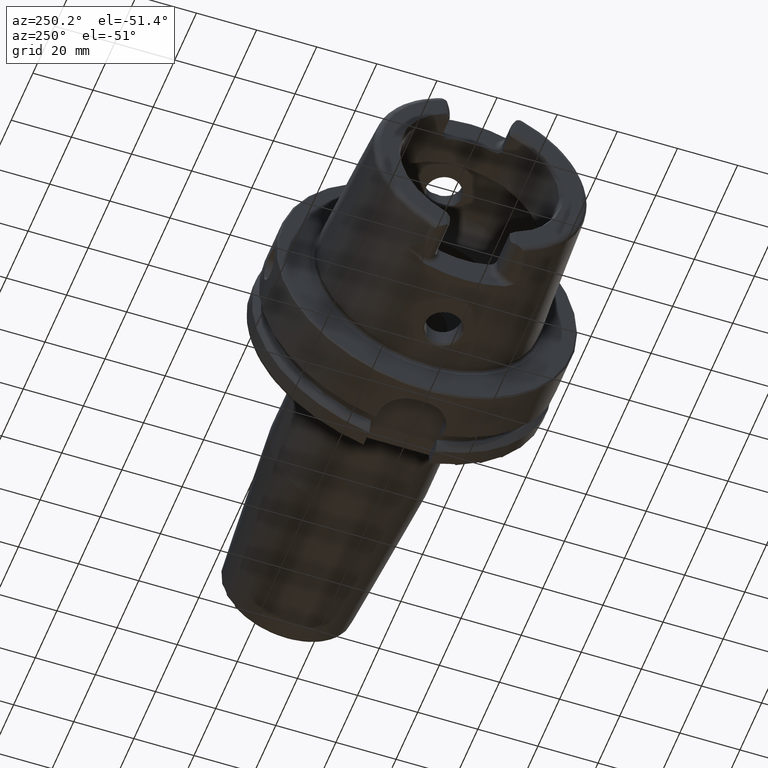
[diagram: clean part render]
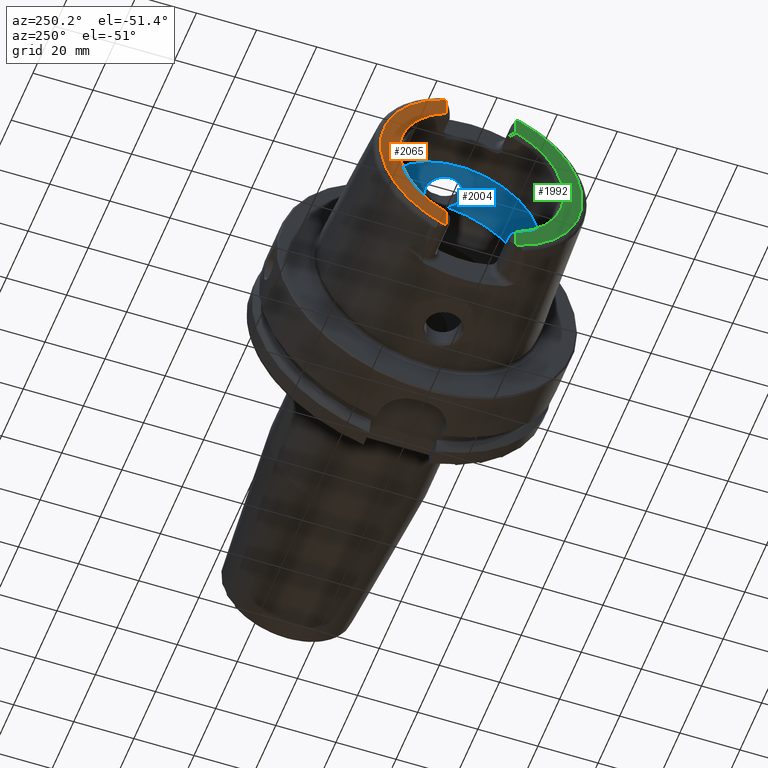
[diagram: same view with three faces highlighted in distinct colors, each labeled with its STEP entity id]
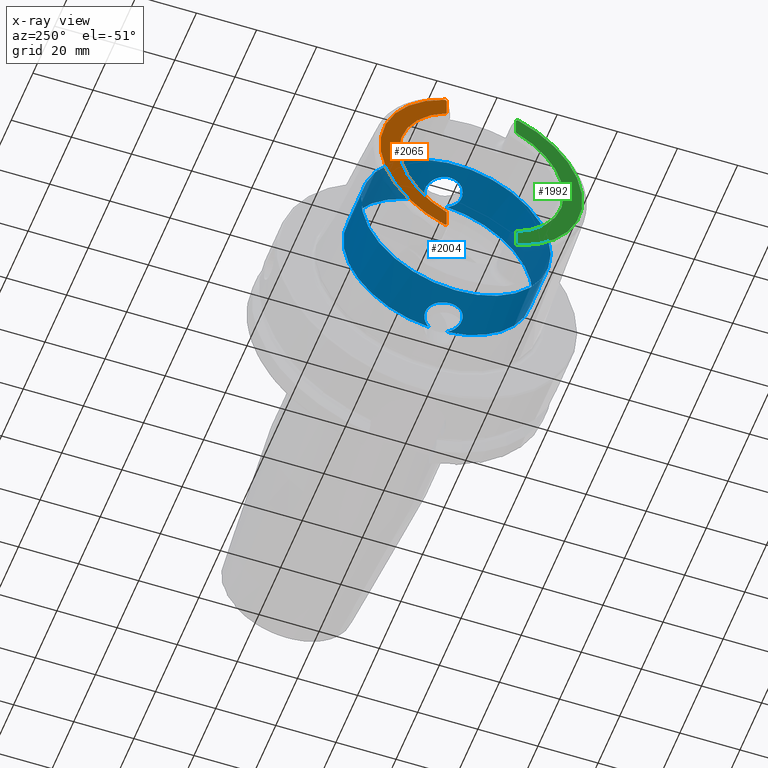
[diagram: x-ray of the same camera — body ghosted, the three highlighted faces saturated]
A machine part, auxiliary view with three faces highlighted in distinct colors.
The next image is the same camera in x-ray (body ghosted, the three faces saturated) — at least one of them is partly hidden behind the body in this view.
Their STEP definitions:

[orange] entity #2065 — the highlighted planar face has unit normal (-1, 0, 0).
#129=PLANE('',#2317);
#303=FACE_OUTER_BOUND('',#431,.T.);
#431=EDGE_LOOP('',(#1849,#1850,#1851,#1852,#1853,#1854));
#479=LINE('',#3095,#586);
#491=LINE('',#3206,#598);
#586=VECTOR('',#2481,10.);
#598=VECTOR('',#2541,10.);
#696=CIRCLE('',#2159,4.88);
#707=CIRCLE('',#2184,4.88);
#771=CIRCLE('',#2309,27.3660254037844);
#772=CIRCLE('',#2313,33.6001839277785);
#836=VERTEX_POINT('',#3088);
#839=VERTEX_POINT('',#3093);
#842=VERTEX_POINT('',#3103);
#863=VERTEX_POINT('',#3203);
#864=VERTEX_POINT('',#3205);
#869=VERTEX_POINT('',#3224);
#1055=EDGE_CURVE('',#839,#836,#479,.T.);
#1059=EDGE_CURVE('',#842,#836,#696,.T.);
#1086=EDGE_CURVE('',#863,#864,#491,.T.);
#1093=EDGE_CURVE('',#863,#869,#707,.T.);
#1281=EDGE_CURVE('',#864,#839,#771,.T.);
#1283=EDGE_CURVE('',#842,#869,#772,.T.);
#1849=ORIENTED_EDGE('',*,*,#1055,.F.);
#1850=ORIENTED_EDGE('',*,*,#1281,.F.);
#1851=ORIENTED_EDGE('',*,*,#1086,.F.);
#1852=ORIENTED_EDGE('',*,*,#1093,.T.);
#1853=ORIENTED_EDGE('',*,*,#1283,.F.);
#1854=ORIENTED_EDGE('',*,*,#1059,.T.);
#2065=ADVANCED_FACE('',(#303),#129,.T.);
#2159=AXIS2_PLACEMENT_3D('',#3104,#2489,#2490);
#2184=AXIS2_PLACEMENT_3D('',#3237,#2550,#2551);
#2309=AXIS2_PLACEMENT_3D('',#4420,#2862,#2863);
#2313=AXIS2_PLACEMENT_3D('',#4425,#2871,#2872);
#2317=AXIS2_PLACEMENT_3D('',#4432,#2880,#2881);
#2481=DIRECTION('',(0.,0.,-1.));
#2489=DIRECTION('center_axis',(-1.,0.,0.));
#2490=DIRECTION('ref_axis',(0.,-0.477884921181368,0.878422450821629));
#2541=DIRECTION('',(0.,0.,-1.));
#2550=DIRECTION('center_axis',(-1.,0.,0.));
#2551=DIRECTION('ref_axis',(0.,1.,0.));
#2862=DIRECTION('center_axis',(-1.,0.,0.));
#2863=DIRECTION('ref_axis',(0.,-1.,0.));
#2871=DIRECTION('center_axis',(1.,0.,0.));
#2872=DIRECTION('ref_axis',(0.,0.,-1.));
#2880=DIRECTION('center_axis',(-1.,0.,0.));
#2881=DIRECTION('ref_axis',(0.,0.,1.));
#3088=CARTESIAN_POINT('',(-50.,11.51,-30.8899431813596));
#3093=CARTESIAN_POINT('',(-50.,11.51,-24.8277918148307));
#3095=CARTESIAN_POINT('',(-50.,11.51,-10.));
#3103=CARTESIAN_POINT('',(-50.,12.0743049948301,-31.355757348091));
#3104=CARTESIAN_POINT('Origin',(-50.,14.89,-27.37));
#3203=CARTESIAN_POINT('',(-50.,11.51,30.8899431813596));
#3205=CARTESIAN_POINT('',(-50.,11.51,24.8277918148307));
#3206=CARTESIAN_POINT('',(-50.,11.51,13.685));
#3224=CARTESIAN_POINT('',(-50.,12.0743049948301,31.355757348091));
#3237=CARTESIAN_POINT('Origin',(-50.,14.89,27.37));
#4420=CARTESIAN_POINT('Origin',(-50.,0.,0.));
#4425=CARTESIAN_POINT('Origin',(-50.,0.,0.));
#4432=CARTESIAN_POINT('Origin',(-50.,33.6001839277785,0.));

[blue] entity #2004 — the highlighted cylindrical surface (bore or boss wall) has radius 31.5 mm, axis along (-1, 0, 0).
#49=B_SPLINE_CURVE_WITH_KNOTS('',3,(#3570,#3571,#3572,#3573,#3574,#3575,
#3576,#3577,#3578,#3579,#3580,#3581,#3582,#3583,#3584,#3585,#3586,#3587,
#3588,#3589,#3590,#3591,#3592,#3593,#3594,#3595,#3596,#3597,#3598,#3599,
#3600),.UNSPECIFIED.,.F.,.F.,(4,2,2,2,2,2,2,2,2,2,2,3,2,2,4),(-2.42966289251045,
-2.26609494287567,-2.03948128472637,-1.81286762657707,-1.58625396842777,
-1.35964031027847,-1.1330370617835,-0.906433813288535,-0.679830564793567,
-0.453227316298599,-0.226613658149299,0.,0.2266136581493,0.453227316298599,
0.616795265988555),.UNSPECIFIED.);
#54=B_SPLINE_CURVE_WITH_KNOTS('',3,(#3762,#3763,#3764,#3765,#3766,#3767,
#3768,#3769,#3770,#3771,#3772,#3773,#3774,#3775,#3776,#3777,#3778,#3779,
#3780,#3781,#3782,#3783,#3784,#3785,#3786,#3787,#3788,#3789,#3790,#3791,
#3792),.UNSPECIFIED.,.F.,.F.,(4,2,2,3,2,2,2,2,2,2,2,2,2,2,4),(-0.616795265933374,
-0.453227316298598,-0.226613658149299,0.,0.2266136581493,0.453227316298599,
0.679830564793567,0.906433813288535,1.1330370617835,1.35964031027847,1.58625396842777,
1.81286762657707,2.03948128472637,2.26609494287567,2.42966289256562),
 .UNSPECIFIED.);
#183=CYLINDRICAL_SURFACE('',#2195,31.5);
#242=FACE_OUTER_BOUND('',#369,.T.);
#369=EDGE_LOOP('',(#1504,#1505,#1506,#1507,#1508,#1509,#1510,#1511,#1512));
#501=LINE('',#3808,#608);
#608=VECTOR('',#2583,31.5);
#714=CIRCLE('',#2196,31.5);
#715=CIRCLE('',#2197,31.5);
#716=CIRCLE('',#2198,31.5);
#717=CIRCLE('',#2199,31.5);
#718=CIRCLE('',#2200,31.5);
#888=VERTEX_POINT('',#3558);
#889=VERTEX_POINT('',#3569);
#892=VERTEX_POINT('',#3749);
#894=VERTEX_POINT('',#3761);
#895=VERTEX_POINT('',#3805);
#896=VERTEX_POINT('',#3807);
#897=VERTEX_POINT('',#3809);
#1119=EDGE_CURVE('',#889,#888,#49,.T.);
#1125=EDGE_CURVE('',#894,#892,#54,.T.);
#1128=EDGE_CURVE('',#895,#892,#714,.T.);
#1129=EDGE_CURVE('',#895,#896,#501,.T.);
#1130=EDGE_CURVE('',#896,#897,#715,.T.);
#1131=EDGE_CURVE('',#897,#896,#716,.T.);
#1132=EDGE_CURVE('',#889,#895,#717,.T.);
#1133=EDGE_CURVE('',#894,#888,#718,.T.);
#1504=ORIENTED_EDGE('',*,*,#1125,.T.);
#1505=ORIENTED_EDGE('',*,*,#1128,.F.);
#1506=ORIENTED_EDGE('',*,*,#1129,.T.);
#1507=ORIENTED_EDGE('',*,*,#1130,.T.);
#1508=ORIENTED_EDGE('',*,*,#1131,.T.);
#1509=ORIENTED_EDGE('',*,*,#1129,.F.);
#1510=ORIENTED_EDGE('',*,*,#1132,.F.);
#1511=ORIENTED_EDGE('',*,*,#1119,.T.);
#1512=ORIENTED_EDGE('',*,*,#1133,.F.);
#2004=ADVANCED_FACE('',(#242),#183,.F.);
#2195=AXIS2_PLACEMENT_3D('',#3804,#2579,#2580);
#2196=AXIS2_PLACEMENT_3D('',#3806,#2581,#2582);
#2197=AXIS2_PLACEMENT_3D('',#3810,#2584,#2585);
#2198=AXIS2_PLACEMENT_3D('',#3811,#2586,#2587);
#2199=AXIS2_PLACEMENT_3D('',#3812,#2588,#2589);
#2200=AXIS2_PLACEMENT_3D('',#3813,#2590,#2591);
#2579=DIRECTION('center_axis',(-1.,0.,0.));
#2580=DIRECTION('ref_axis',(0.,1.,0.));
#2581=DIRECTION('center_axis',(-1.,0.,0.));
#2582=DIRECTION('ref_axis',(0.,0.,1.));
#2583=DIRECTION('',(-1.,0.,0.));
#2584=DIRECTION('center_axis',(-1.,0.,0.));
#2585=DIRECTION('ref_axis',(0.,0.,1.));
#2586=DIRECTION('center_axis',(-1.,0.,0.));
#2587=DIRECTION('ref_axis',(0.,0.,1.));
#2588=DIRECTION('center_axis',(-1.,0.,0.));
#2589=DIRECTION('ref_axis',(0.,0.,1.));
#2590=DIRECTION('center_axis',(-1.,0.,0.));
#2591=DIRECTION('ref_axis',(0.,0.,1.));
#3558=CARTESIAN_POINT('',(-9.74679434480896,2.89893607109041,-31.3663222207471));
#3569=CARTESIAN_POINT('',(-9.74679434480896,-2.89893607109041,-31.3663222207471));
#3570=CARTESIAN_POINT('Ctrl Pts',(-9.74679434480898,-2.8989360710904,-31.3663222207471));
#3571=CARTESIAN_POINT('Ctrl Pts',(-10.0245557799842,-3.40227174537722,-31.3198029657389));
#3572=CARTESIAN_POINT('Ctrl Pts',(-10.3735944692601,-3.85887584349869,-31.2651415110221));
#3573=CARTESIAN_POINT('Ctrl Pts',(-11.289042660848,-4.77432403508655,-31.140708727458));
#3574=CARTESIAN_POINT('Ctrl Pts',(-11.9624834305428,-5.23577180141274,-31.0633803744766));
#3575=CARTESIAN_POINT('Ctrl Pts',(-13.4401908644727,-5.84865855662958,-30.9538382316308));
#3576=CARTESIAN_POINT('Ctrl Pts',(-14.2446211395023,-6.00000000000001,-30.9232921921325));
#3577=CARTESIAN_POINT('Ctrl Pts',(-15.7553788604977,-6.00000000000001,-30.9232921921325));
#3578=CARTESIAN_POINT('Ctrl Pts',(-16.5598091355273,-5.84865855662958,-30.9538382316308));
#3579=CARTESIAN_POINT('Ctrl Pts',(-18.0375165694572,-5.23577180141275,-31.0633803744766));
#3580=CARTESIAN_POINT('Ctrl Pts',(-18.710957339152,-4.77432403508655,-31.140708727458));
#3581=CARTESIAN_POINT('Ctrl Pts',(-19.7742996118461,-3.71098176239249,-31.2852440928545));
#3582=CARTESIAN_POINT('Ctrl Pts',(-20.2357665181958,-3.03753058698362,-31.3619556484746));
#3583=CARTESIAN_POINT('Ctrl Pts',(-20.8486671603361,-1.55978711209124,-31.4700797313679));
#3584=CARTESIAN_POINT('Ctrl Pts',(-21.,-0.755344161649895,-31.5));
#3585=CARTESIAN_POINT('Ctrl Pts',(-21.,0.755344161649892,-31.5));
#3586=CARTESIAN_POINT('Ctrl Pts',(-20.8486671603361,1.55978711209124,-31.4700797313679));
#3587=CARTESIAN_POINT('Ctrl Pts',(-20.2357665181958,3.03753058698362,-31.3619556484746));
#3588=CARTESIAN_POINT('Ctrl Pts',(-19.7742996118461,3.71098176239249,-31.2852440928545));
#3589=CARTESIAN_POINT('Ctrl Pts',(-18.710957339152,4.77432403508655,-31.140708727458));
#3590=CARTESIAN_POINT('Ctrl Pts',(-18.0375165694572,5.23577180141274,-31.0633803744766));
#3591=CARTESIAN_POINT('Ctrl Pts',(-16.5598091355273,5.84865855662958,-30.9538382316308));
#3592=CARTESIAN_POINT('Ctrl Pts',(-15.7553788604977,6.00000000000001,-30.9232921921325));
#3593=CARTESIAN_POINT('Ctrl Pts',(-15.,6.00000000000001,-30.9232921921325));
#3594=CARTESIAN_POINT('Ctrl Pts',(-14.2446211395023,6.00000000000001,-30.9232921921325));
#3595=CARTESIAN_POINT('Ctrl Pts',(-13.4401908644727,5.84865855662958,-30.9538382316308));
#3596=CARTESIAN_POINT('Ctrl Pts',(-11.9624834305428,5.23577180141274,-31.0633803744766));
#3597=CARTESIAN_POINT('Ctrl Pts',(-11.289042660848,4.77432403508655,-31.140708727458));
#3598=CARTESIAN_POINT('Ctrl Pts',(-10.3735944691306,3.85887584336922,-31.2651415110397));
#3599=CARTESIAN_POINT('Ctrl Pts',(-10.0245557801354,3.40227174565105,-31.3198029657135));
#3600=CARTESIAN_POINT('Ctrl Pts',(-9.74679434480898,2.8989360710904,-31.3663222207471));
#3749=CARTESIAN_POINT('',(-9.74679434480896,-2.89893607109042,31.3663222207471));
#3761=CARTESIAN_POINT('',(-9.74679434480896,2.89893607109042,31.3663222207471));
#3762=CARTESIAN_POINT('Ctrl Pts',(-9.74679434480897,2.89893607109041,31.3663222207471));
#3763=CARTESIAN_POINT('Ctrl Pts',(-10.0245557799842,3.40227174537723,31.3198029657389));
#3764=CARTESIAN_POINT('Ctrl Pts',(-10.3735944692601,3.85887584349869,31.2651415110221));
#3765=CARTESIAN_POINT('Ctrl Pts',(-11.289042660848,4.77432403508655,31.140708727458));
#3766=CARTESIAN_POINT('Ctrl Pts',(-11.9624834305428,5.23577180141274,31.0633803744766));
#3767=CARTESIAN_POINT('Ctrl Pts',(-13.4401908644727,5.84865855662958,30.9538382316308));
#3768=CARTESIAN_POINT('Ctrl Pts',(-14.2446211395023,6.00000000000001,30.9232921921325));
#3769=CARTESIAN_POINT('Ctrl Pts',(-15.,6.00000000000001,30.9232921921325));
#3770=CARTESIAN_POINT('Ctrl Pts',(-15.7553788604977,6.00000000000001,30.9232921921325));
#3771=CARTESIAN_POINT('Ctrl Pts',(-16.5598091355273,5.84865855662958,30.9538382316308));
#3772=CARTESIAN_POINT('Ctrl Pts',(-18.0375165694572,5.23577180141274,31.0633803744766));
#3773=CARTESIAN_POINT('Ctrl Pts',(-18.710957339152,4.77432403508655,31.140708727458));
#3774=CARTESIAN_POINT('Ctrl Pts',(-19.7742996118461,3.71098176239249,31.2852440928545));
#3775=CARTESIAN_POINT('Ctrl Pts',(-20.2357665181958,3.03753058698362,31.3619556484746));
#3776=CARTESIAN_POINT('Ctrl Pts',(-20.8486671603361,1.55978711209124,31.4700797313679));
#3777=CARTESIAN_POINT('Ctrl Pts',(-21.,0.755344161649892,31.5));
#3778=CARTESIAN_POINT('Ctrl Pts',(-21.,-0.755344161649894,31.5));
#3779=CARTESIAN_POINT('Ctrl Pts',(-20.8486671603361,-1.55978711209124,31.4700797313679));
#3780=CARTESIAN_POINT('Ctrl Pts',(-20.2357665181958,-3.03753058698362,31.3619556484746));
#3781=CARTESIAN_POINT('Ctrl Pts',(-19.7742996118461,-3.71098176239249,31.2852440928545));
#3782=CARTESIAN_POINT('Ctrl Pts',(-18.710957339152,-4.77432403508655,31.140708727458));
#3783=CARTESIAN_POINT('Ctrl Pts',(-18.0375165694572,-5.23577180141274,31.0633803744766));
#3784=CARTESIAN_POINT('Ctrl Pts',(-16.5598091355273,-5.84865855662958,30.9538382316308));
#3785=CARTESIAN_POINT('Ctrl Pts',(-15.7553788604977,-6.00000000000001,30.9232921921325));
#3786=CARTESIAN_POINT('Ctrl Pts',(-14.2446211395023,-6.00000000000001,30.9232921921325));
#3787=CARTESIAN_POINT('Ctrl Pts',(-13.4401908644727,-5.84865855662958,30.9538382316308));
#3788=CARTESIAN_POINT('Ctrl Pts',(-11.9624834305428,-5.23577180141274,31.0633803744766));
#3789=CARTESIAN_POINT('Ctrl Pts',(-11.289042660848,-4.77432403508655,31.140708727458));
#3790=CARTESIAN_POINT('Ctrl Pts',(-10.3735944691306,-3.85887584336922,31.2651415110397));
#3791=CARTESIAN_POINT('Ctrl Pts',(-10.0245557801353,-3.40227174565106,31.3198029657135));
#3792=CARTESIAN_POINT('Ctrl Pts',(-9.74679434480897,-2.89893607109041,31.3663222207471));
#3804=CARTESIAN_POINT('Origin',(-18.1430342013226,0.,0.));
#3805=CARTESIAN_POINT('',(-9.74679434480896,-31.5,3.85763741731416E-15));
#3806=CARTESIAN_POINT('Origin',(-9.74679434480896,0.,0.));
#3807=CARTESIAN_POINT('',(-26.5392740578363,-31.5,3.85763741731416E-15));
#3808=CARTESIAN_POINT('',(-18.1430342013226,-31.5,3.85763741731416E-15));
#3809=CARTESIAN_POINT('',(-26.5392740578363,-3.85763741731416E-15,-31.5));
#3810=CARTESIAN_POINT('Origin',(-26.5392740578363,0.,0.));
#3811=CARTESIAN_POINT('Origin',(-26.5392740578363,0.,0.));
#3812=CARTESIAN_POINT('Origin',(-9.74679434480896,0.,0.));
#3813=CARTESIAN_POINT('Origin',(-9.74679434480896,0.,0.));

[green] entity #1992 — the highlighted planar face has unit normal (-1, 0, 0).
#105=PLANE('',#2170);
#230=FACE_OUTER_BOUND('',#355,.T.);
#355=EDGE_LOOP('',(#1424,#1425,#1426,#1427,#1428,#1429));
#484=LINE('',#3147,#591);
#486=LINE('',#3166,#593);
#591=VECTOR('',#2500,10.);
#593=VECTOR('',#2522,10.);
#699=CIRCLE('',#2166,27.3660254037844);
#702=CIRCLE('',#2171,4.88);
#703=CIRCLE('',#2172,33.6001839277785);
#704=CIRCLE('',#2173,4.88);
#848=VERTEX_POINT('',#3144);
#849=VERTEX_POINT('',#3146);
#851=VERTEX_POINT('',#3152);
#854=VERTEX_POINT('',#3160);
#855=VERTEX_POINT('',#3162);
#856=VERTEX_POINT('',#3164);
#1066=EDGE_CURVE('',#848,#849,#484,.T.);
#1069=EDGE_CURVE('',#849,#851,#699,.T.);
#1073=EDGE_CURVE('',#848,#854,#702,.T.);
#1074=EDGE_CURVE('',#855,#854,#703,.T.);
#1075=EDGE_CURVE('',#855,#856,#704,.T.);
#1076=EDGE_CURVE('',#851,#856,#486,.T.);
#1424=ORIENTED_EDGE('',*,*,#1066,.F.);
#1425=ORIENTED_EDGE('',*,*,#1073,.T.);
#1426=ORIENTED_EDGE('',*,*,#1074,.F.);
#1427=ORIENTED_EDGE('',*,*,#1075,.T.);
#1428=ORIENTED_EDGE('',*,*,#1076,.F.);
#1429=ORIENTED_EDGE('',*,*,#1069,.F.);
#1992=ADVANCED_FACE('',(#230),#105,.T.);
#2166=AXIS2_PLACEMENT_3D('',#3153,#2506,#2507);
#2170=AXIS2_PLACEMENT_3D('',#3159,#2514,#2515);
#2171=AXIS2_PLACEMENT_3D('',#3161,#2516,#2517);
#2172=AXIS2_PLACEMENT_3D('',#3163,#2518,#2519);
#2173=AXIS2_PLACEMENT_3D('',#3165,#2520,#2521);
#2500=DIRECTION('',(0.,0.,1.));
#2506=DIRECTION('center_axis',(-1.,0.,0.));
#2507=DIRECTION('ref_axis',(0.,-1.,0.));
#2514=DIRECTION('center_axis',(-1.,0.,0.));
#2515=DIRECTION('ref_axis',(0.,0.,1.));
#2516=DIRECTION('center_axis',(-1.,0.,0.));
#2517=DIRECTION('ref_axis',(0.,-1.,0.));
#2518=DIRECTION('center_axis',(1.,0.,0.));
#2519=DIRECTION('ref_axis',(0.,0.,-1.));
#2520=DIRECTION('center_axis',(-1.,0.,0.));
#2521=DIRECTION('ref_axis',(0.,0.477884921181369,-0.878422450821629));
#2522=DIRECTION('',(0.,0.,1.));
#3144=CARTESIAN_POINT('',(-50.,-11.51,-30.8899431813596));
#3146=CARTESIAN_POINT('',(-50.,-11.51,-24.8277918148307));
#3147=CARTESIAN_POINT('',(-50.,-11.51,-13.685));
#3152=CARTESIAN_POINT('',(-50.,-11.51,24.8277918148307));
#3153=CARTESIAN_POINT('Origin',(-50.,0.,0.));
#3159=CARTESIAN_POINT('Origin',(-50.,33.6001839277785,0.));
#3160=CARTESIAN_POINT('',(-50.,-12.0743049948301,-31.355757348091));
#3161=CARTESIAN_POINT('Origin',(-50.,-14.89,-27.37));
#3162=CARTESIAN_POINT('',(-50.,-12.0743049948301,31.355757348091));
#3163=CARTESIAN_POINT('Origin',(-50.,0.,0.));
#3164=CARTESIAN_POINT('',(-50.,-11.51,30.8899431813596));
#3165=CARTESIAN_POINT('Origin',(-50.,-14.89,27.37));
#3166=CARTESIAN_POINT('',(-50.,-11.51,9.));